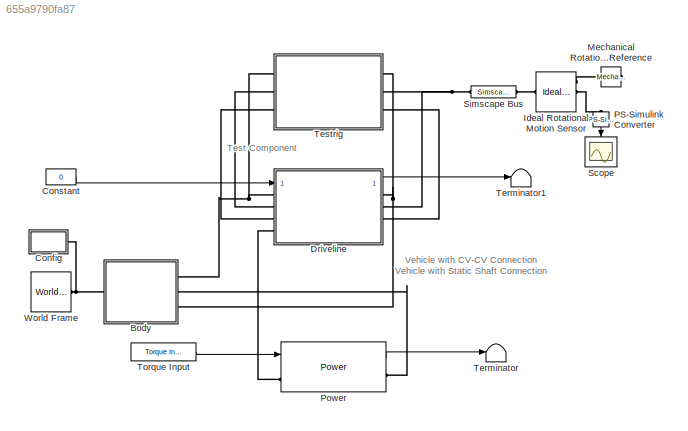
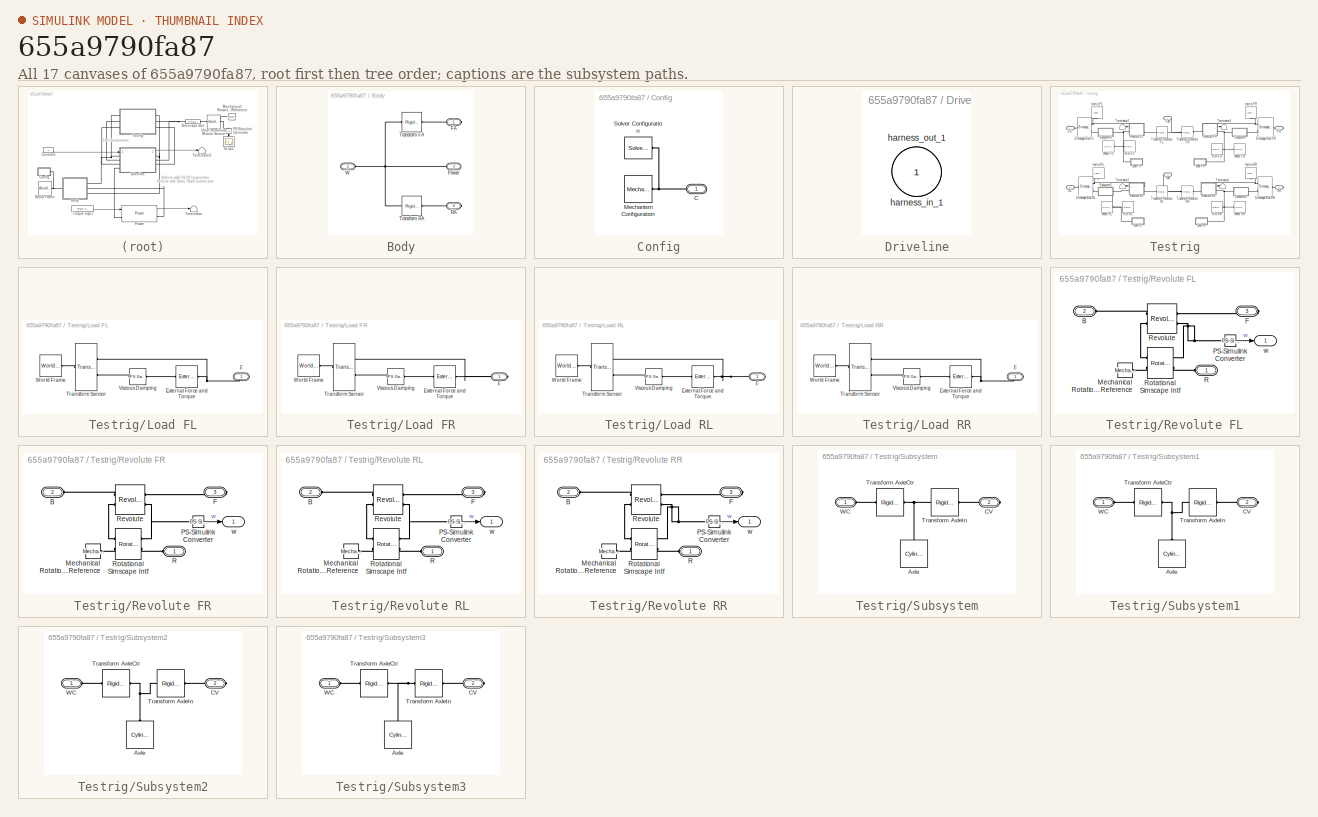
[diagram: thumbnail index - all 17 canvases of the model, root first then tree order]
MODEL slx_655a9790fa87
KIND model
CONFIG AbsTol = auto
CONFIG EnableMultiTasking = off
CONFIG FixedStep = auto
CONFIG MaxStep = auto
CONFIG MinStep = auto
CONFIG RelTol = 1e-3
CONFIG SampleTimeConstraint = Unconstrained
CONFIG SolverName = VariableStepAuto
CONFIG StartTime = 0.0
CONFIG StopTime = 10.0
BLOCK [SubSystem] Body
  Ports = [0, 0, 0, 0, 0, 1, 3]
  RequestExecContextInheritance = off
BLOCK [PMIOPort] Body/ Power
  Port = 3
  Side = Right
BLOCK [PMIOPort] Body/FA
  Side = Right
BLOCK [PMIOPort] Body/RA
  Port = 4
  Side = Right
BLOCK [Reference] Body/Transform FA   REF=sm_lib/Frames and
Transforms/Rigid
Transform
  Ports = [0, 0, 0, 0, 0, 1, 1]
  SourceBlock = sm_lib/Frames and\nTransforms/Rigid\nTransform
  SourceProductBaseCode = MS
  SourceType = Rigid\nTransform
BLOCK [Reference] Body/Transform RA  REF=sm_lib/Frames and
Transforms/Rigid
Transform
  Ports = [0, 0, 0, 0, 0, 1, 1]
  SourceBlock = sm_lib/Frames and\nTransforms/Rigid\nTransform
  SourceProductBaseCode = MS
  SourceType = Rigid\nTransform
BLOCK [PMIOPort] Body/W
  Port = 2
  Side = Left
BLOCK [SubSystem] Config
  Ports = [0, 0, 0, 0, 0, 0, 1]
  RequestExecContextInheritance = off
BLOCK [PMIOPort] Config/C
  Side = Right
BLOCK [Reference] Config/Mechanism Configuration  REF=sm_lib/Utilities/Mechanism
Configuration
  Ports = [0, 0, 0, 0, 0, 0, 1]
  SourceBlock = sm_lib/Utilities/Mechanism\nConfiguration
  SourceProductBaseCode = MS
  SourceType = Mechanism\nConfiguration
BLOCK [Reference] Config/Solver Configuration  REF=nesl_utility/Solver
Configuration
  Ports = [0, 0, 0, 0, 0, 0, 1]
  SourceBlock = nesl_utility/Solver\nConfiguration
  SourceProductBaseCode = SS,PW,VE
  SourceType = Solver\nConfiguration
BLOCK [Constant] Constant
  Value = 0
BLOCK [SubSystem] Driveline
  Ports = [1, 1, 0, 0, 0, 4, 4]
  RequestExecContextInheritance = off
  Tag = __SL_testing_harness_stub_
BLOCK [Inport] Driveline/harness_in_1
BLOCK [Outport] Driveline/harness_out_1
  VectorParamsAs1DForOutWhenUnconnected = off
BLOCK [Reference] Ideal Rotational Motion Sensor  REF=fl_lib/Mechanical/Mechanical Sensors/Ideal Rotational
Motion Sensor
  Ports = [0, 0, 0, 0, 0, 1, 3]
  SourceBlock = fl_lib/Mechanical/Mechanical Sensors/Ideal Rotational\nMotion Sensor
  SourceProductBaseCode = PW,SS,VE
  SourceType = Ideal Rotational\nMotion Sensor
BLOCK [Reference] Mechanical Rotational Reference  REF=fl_lib/Mechanical/Rotational Elements/Mechanical
Rotational Reference
  NameLocation = top
  Ports = [0, 0, 0, 0, 0, 1]
  SourceBlock = fl_lib/Mechanical/Rotational Elements/Mechanical\nRotational Reference
  SourceProductBaseCode = PW,SS,VE
  SourceType = Mechanical\nRotational Reference
BLOCK [Reference] PS-Simulink Converter  REF=nesl_utility/PS-Simulink
Converter
  NameLocation = left
  Ports = [0, 1, 0, 0, 0, 1]
  SourceBlock = nesl_utility/PS-Simulink\nConverter
  SourceProductBaseCode = SS,PW,VE
  SourceType = PS-Simulink\nConverter
BLOCK [Reference] Power  REF=Power_Systems/Power
  AttributesFormatString = %<ActiveVariant>
  Ports = [2, 1, 0, 0, 0, 1, 1]
  SourceBlock = Power_Systems/Power
  SourceType = Variants for Power
BLOCK [Scope] Scope
  Floating = off
  NameLocation = left
  NumInputPorts = 1
  Ports = [1]
  ScopeSpecificationString = Simulink.scopes.TimeScopeBlockCfg('CurrentConfiguration', extmgr.ConfigurationSet(extmgr.Configuration('Core','General UI',true),extmgr.Configuration('Core','Source UI',true),extmgr.Configuration('Sources','WiredSimulink',true),extmgr.Configuration('Visuals','Time Domain',true,'SerializedDisplays',{struct('MinYLimReal','-10.00000','MaxYLimReal','90.00000','YLabelReal','','MinYLimMag','0.00000','Ma...<+1355ch>
BLOCK [SimscapeBus] Simscape Bus
  HierarchyStrings = Axle1D
  Ports = [0, 0, 0, 0, 0, 1, 1]
BLOCK [Terminator] Terminator
BLOCK [Terminator] Terminator1
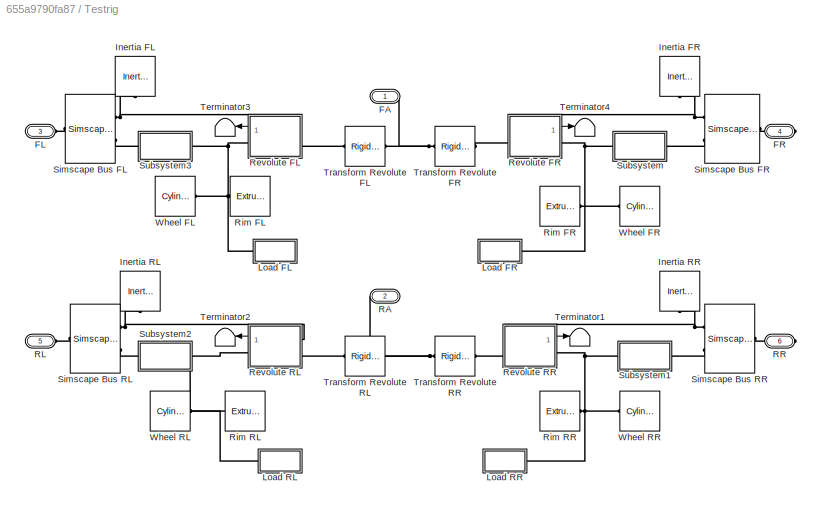
BLOCK [SubSystem] Testrig
  Ports = [0, 0, 0, 0, 0, 3, 3]
  RequestExecContextInheritance = off
BLOCK [PMIOPort] Testrig/FA
  Side = Left
BLOCK [PMIOPort] Testrig/FL
  Port = 3
  Side = Left
BLOCK [PMIOPort] Testrig/FR
  Port = 4
  Side = Right
BLOCK [Reference] Testrig/Inertia FL  REF=fl_lib/Mechanical/Rotational Elements/Inertia
  NameLocation = right
  Ports = [0, 0, 0, 0, 0, 1]
  SourceBlock = fl_lib/Mechanical/Rotational Elements/Inertia
  SourceProductBaseCode = PW,SS,VE
  SourceType = Inertia
BLOCK [Reference] Testrig/Inertia FR  REF=fl_lib/Mechanical/Rotational Elements/Inertia
  NameLocation = left
  Ports = [0, 0, 0, 0, 0, 1]
  SourceBlock = fl_lib/Mechanical/Rotational Elements/Inertia
  SourceProductBaseCode = PW,SS,VE
  SourceType = Inertia
BLOCK [Reference] Testrig/Inertia RL  REF=fl_lib/Mechanical/Rotational Elements/Inertia
  NameLocation = right
  Ports = [0, 0, 0, 0, 0, 1]
  SourceBlock = fl_lib/Mechanical/Rotational Elements/Inertia
  SourceProductBaseCode = PW,SS,VE
  SourceType = Inertia
BLOCK [Reference] Testrig/Inertia RR  REF=fl_lib/Mechanical/Rotational Elements/Inertia
  NameLocation = left
  Ports = [0, 0, 0, 0, 0, 1]
  SourceBlock = fl_lib/Mechanical/Rotational Elements/Inertia
  SourceProductBaseCode = PW,SS,VE
  SourceType = Inertia
BLOCK [SubSystem] Testrig/Load FL
  Ports = [0, 0, 0, 0, 0, 0, 1]
  RequestExecContextInheritance = off
BLOCK [Reference] Testrig/Load FL/External Force and Torque  REF=sm_lib/Forces and
Torques/External Force
and Torque
  Ports = [0, 0, 0, 0, 0, 1, 1]
  SourceBlock = sm_lib/Forces and\nTorques/External Force\nand Torque
  SourceProductBaseCode = MS
  SourceType = External Force\nand Torque
BLOCK [PMIOPort] Testrig/Load FL/F
  Side = Right
BLOCK [Reference] Testrig/Load FL/Transform Sensor  REF=sm_lib/Frames and
Transforms/Transform
Sensor
  Ports = [0, 0, 0, 0, 0, 1, 2]
  SourceBlock = sm_lib/Frames and\nTransforms/Transform\nSensor
  SourceProductBaseCode = MS
  SourceType = Transform\nSensor
BLOCK [Reference] Testrig/Load FL/Viscous Damping  REF=fl_ps_legacy_lib/Legacy Physical
Signals/Functions/PS Gain
  Ports = [0, 0, 0, 0, 0, 1, 1]
  SourceBlock = fl_ps_legacy_lib/Legacy Physical\nSignals/Functions/PS Gain
  SourceProductBaseCode = PW,SS,VE
  SourceType = PS Gain
BLOCK [Reference] Testrig/Load FL/World Frame  REF=sm_lib/Frames and
Transforms/World Frame
  Ports = [0, 0, 0, 0, 0, 0, 1]
  SourceBlock = sm_lib/Frames and\nTransforms/World Frame
  SourceProductBaseCode = MS
  SourceType = World Frame
BLOCK [SubSystem] Testrig/Load FR
  Ports = [0, 0, 0, 0, 0, 0, 1]
  RequestExecContextInheritance = off
BLOCK [Reference] Testrig/Load FR/External Force and Torque  REF=sm_lib/Forces and
Torques/External Force
and Torque
  Ports = [0, 0, 0, 0, 0, 1, 1]
  SourceBlock = sm_lib/Forces and\nTorques/External Force\nand Torque
  SourceProductBaseCode = MS
  SourceType = External Force\nand Torque
BLOCK [PMIOPort] Testrig/Load FR/F
  Side = Right
BLOCK [Reference] Testrig/Load FR/Transform Sensor  REF=sm_lib/Frames and
Transforms/Transform
Sensor
  Ports = [0, 0, 0, 0, 0, 1, 2]
  SourceBlock = sm_lib/Frames and\nTransforms/Transform\nSensor
  SourceProductBaseCode = MS
  SourceType = Transform\nSensor
BLOCK [Reference] Testrig/Load FR/Viscous Damping  REF=fl_ps_legacy_lib/Legacy Physical
Signals/Functions/PS Gain
  Ports = [0, 0, 0, 0, 0, 1, 1]
  SourceBlock = fl_ps_legacy_lib/Legacy Physical\nSignals/Functions/PS Gain
  SourceProductBaseCode = PW,SS,VE
  SourceType = PS Gain
BLOCK [Reference] Testrig/Load FR/World Frame  REF=sm_lib/Frames and
Transforms/World Frame
  Ports = [0, 0, 0, 0, 0, 0, 1]
  SourceBlock = sm_lib/Frames and\nTransforms/World Frame
  SourceProductBaseCode = MS
  SourceType = World Frame
BLOCK [SubSystem] Testrig/Load RL
  Ports = [0, 0, 0, 0, 0, 0, 1]
  RequestExecContextInheritance = off
BLOCK [Reference] Testrig/Load RL/External Force and Torque  REF=sm_lib/Forces and
Torques/External Force
and Torque
  Ports = [0, 0, 0, 0, 0, 1, 1]
  SourceBlock = sm_lib/Forces and\nTorques/External Force\nand Torque
  SourceProductBaseCode = MS
  SourceType = External Force\nand Torque
BLOCK [PMIOPort] Testrig/Load RL/F
  Side = Right
BLOCK [Reference] Testrig/Load RL/Transform Sensor  REF=sm_lib/Frames and
Transforms/Transform
Sensor
  Ports = [0, 0, 0, 0, 0, 1, 2]
  SourceBlock = sm_lib/Frames and\nTransforms/Transform\nSensor
  SourceProductBaseCode = MS
  SourceType = Transform\nSensor
BLOCK [Reference] Testrig/Load RL/Viscous Damping  REF=fl_ps_legacy_lib/Legacy Physical
Signals/Functions/PS Gain
  Ports = [0, 0, 0, 0, 0, 1, 1]
  SourceBlock = fl_ps_legacy_lib/Legacy Physical\nSignals/Functions/PS Gain
  SourceProductBaseCode = PW,SS,VE
  SourceType = PS Gain
BLOCK [Reference] Testrig/Load RL/World Frame  REF=sm_lib/Frames and
Transforms/World Frame
  Ports = [0, 0, 0, 0, 0, 0, 1]
  SourceBlock = sm_lib/Frames and\nTransforms/World Frame
  SourceProductBaseCode = MS
  SourceType = World Frame
BLOCK [SubSystem] Testrig/Load RR
  Ports = [0, 0, 0, 0, 0, 0, 1]
  RequestExecContextInheritance = off
BLOCK [Reference] Testrig/Load RR/External Force and Torque  REF=sm_lib/Forces and
Torques/External Force
and Torque
  Ports = [0, 0, 0, 0, 0, 1, 1]
  SourceBlock = sm_lib/Forces and\nTorques/External Force\nand Torque
  SourceProductBaseCode = MS
  SourceType = External Force\nand Torque
BLOCK [PMIOPort] Testrig/Load RR/F
  Side = Right
BLOCK [Reference] Testrig/Load RR/Transform Sensor  REF=sm_lib/Frames and
Transforms/Transform
Sensor
  Ports = [0, 0, 0, 0, 0, 1, 2]
  SourceBlock = sm_lib/Frames and\nTransforms/Transform\nSensor
  SourceProductBaseCode = MS
  SourceType = Transform\nSensor
BLOCK [Reference] Testrig/Load RR/Viscous Damping  REF=fl_ps_legacy_lib/Legacy Physical
Signals/Functions/PS Gain
  Ports = [0, 0, 0, 0, 0, 1, 1]
  SourceBlock = fl_ps_legacy_lib/Legacy Physical\nSignals/Functions/PS Gain
  SourceProductBaseCode = PW,SS,VE
  SourceType = PS Gain
BLOCK [Reference] Testrig/Load RR/World Frame  REF=sm_lib/Frames and
Transforms/World Frame
  Ports = [0, 0, 0, 0, 0, 0, 1]
  SourceBlock = sm_lib/Frames and\nTransforms/World Frame
  SourceProductBaseCode = MS
  SourceType = World Frame
BLOCK [PMIOPort] Testrig/RA
  Port = 2
  Side = Right
BLOCK [PMIOPort] Testrig/RL
  Port = 5
  Side = Left
BLOCK [PMIOPort] Testrig/RR
  Port = 6
  Side = Right
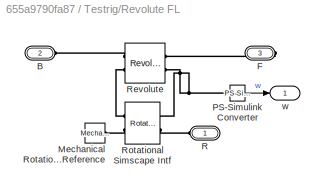
BLOCK [SubSystem] Testrig/Revolute FL
  Ports = [0, 1, 0, 0, 0, 2, 1]
  RequestExecContextInheritance = off
BLOCK [PMIOPort] Testrig/Revolute FL/B
  Port = 2
  Side = Left
BLOCK [PMIOPort] Testrig/Revolute FL/F
  Port = 3
  Side = Right
BLOCK [Reference] Testrig/Revolute FL/Mechanical Rotational Reference  REF=fl_lib/Mechanical/Rotational Elements/Mechanical
Rotational Reference
  Ports = [0, 0, 0, 0, 0, 1]
  SourceBlock = fl_lib/Mechanical/Rotational Elements/Mechanical\nRotational Reference
  SourceProductBaseCode = PW,SS,VE
  SourceType = Mechanical\nRotational Reference
BLOCK [Reference] Testrig/Revolute FL/PS-Simulink Converter  REF=nesl_utility/PS-Simulink
Converter
  Ports = [0, 1, 0, 0, 0, 1]
  SourceBlock = nesl_utility/PS-Simulink\nConverter
  SourceProductBaseCode = SS,PW,VE
  SourceType = PS-Simulink\nConverter
BLOCK [PMIOPort] Testrig/Revolute FL/R
  Side = Left
BLOCK [Reference] Testrig/Revolute FL/Revolute  REF=sm_lib/Joints/Revolute Joint
  Ports = [0, 0, 0, 0, 0, 2, 2]
  SourceBlock = sm_lib/Joints/Revolute Joint
  SourceProductBaseCode = MS
  SourceType = Revolute Joint
BLOCK [Reference] Testrig/Revolute FL/Rotational Simscape Intf  REF=sm_car_lib/Utilities/Rotational  (lib defined in slx_05426f0848b6, slx_5dc2867fb1c9)
Simscape Intf
  Ports = [0, 0, 0, 0, 0, 2, 2]
  SourceBlock = sm_car_lib/Utilities/Rotational\nSimscape Intf
  SourceType = SubSystem
BLOCK [Outport] Testrig/Revolute FL/w
  VectorParamsAs1DForOutWhenUnconnected = off
BLOCK [SubSystem] Testrig/Revolute FR
  Ports = [0, 1, 0, 0, 0, 2, 1]
  RequestExecContextInheritance = off
BLOCK [PMIOPort] Testrig/Revolute FR/B
  Port = 2
  Side = Left
BLOCK [PMIOPort] Testrig/Revolute FR/F
  Port = 3
  Side = Right
BLOCK [Reference] Testrig/Revolute FR/Mechanical Rotational Reference  REF=fl_lib/Mechanical/Rotational Elements/Mechanical
Rotational Reference
  Ports = [0, 0, 0, 0, 0, 1]
  SourceBlock = fl_lib/Mechanical/Rotational Elements/Mechanical\nRotational Reference
  SourceProductBaseCode = PW,SS,VE
  SourceType = Mechanical\nRotational Reference
BLOCK [Reference] Testrig/Revolute FR/PS-Simulink Converter  REF=nesl_utility/PS-Simulink
Converter
  Ports = [0, 1, 0, 0, 0, 1]
  SourceBlock = nesl_utility/PS-Simulink\nConverter
  SourceProductBaseCode = SS,PW,VE
  SourceType = PS-Simulink\nConverter
BLOCK [PMIOPort] Testrig/Revolute FR/R
  Side = Left
BLOCK [Reference] Testrig/Revolute FR/Revolute  REF=sm_lib/Joints/Revolute Joint
  Ports = [0, 0, 0, 0, 0, 2, 2]
  SourceBlock = sm_lib/Joints/Revolute Joint
  SourceProductBaseCode = MS
  SourceType = Revolute Joint
BLOCK [Reference] Testrig/Revolute FR/Rotational Simscape Intf  REF=sm_car_lib/Utilities/Rotational  (lib defined in slx_05426f0848b6, slx_5dc2867fb1c9)
Simscape Intf
  Ports = [0, 0, 0, 0, 0, 2, 2]
  SourceBlock = sm_car_lib/Utilities/Rotational\nSimscape Intf
  SourceType = SubSystem
BLOCK [Outport] Testrig/Revolute FR/w
  VectorParamsAs1DForOutWhenUnconnected = off
BLOCK [SubSystem] Testrig/Revolute RL
  Ports = [0, 1, 0, 0, 0, 2, 1]
  RequestExecContextInheritance = off
BLOCK [PMIOPort] Testrig/Revolute RL/B
  Port = 2
  Side = Left
BLOCK [PMIOPort] Testrig/Revolute RL/F
  Port = 3
  Side = Right
BLOCK [Reference] Testrig/Revolute RL/Mechanical Rotational Reference  REF=fl_lib/Mechanical/Rotational Elements/Mechanical
Rotational Reference
  Ports = [0, 0, 0, 0, 0, 1]
  SourceBlock = fl_lib/Mechanical/Rotational Elements/Mechanical\nRotational Reference
  SourceProductBaseCode = PW,SS,VE
  SourceType = Mechanical\nRotational Reference
BLOCK [Reference] Testrig/Revolute RL/PS-Simulink Converter  REF=nesl_utility/PS-Simulink
Converter
  Ports = [0, 1, 0, 0, 0, 1]
  SourceBlock = nesl_utility/PS-Simulink\nConverter
  SourceProductBaseCode = SS,PW,VE
  SourceType = PS-Simulink\nConverter
BLOCK [PMIOPort] Testrig/Revolute RL/R
  Side = Left
BLOCK [Reference] Testrig/Revolute RL/Revolute  REF=sm_lib/Joints/Revolute Joint
  Ports = [0, 0, 0, 0, 0, 2, 2]
  SourceBlock = sm_lib/Joints/Revolute Joint
  SourceProductBaseCode = MS
  SourceType = Revolute Joint
BLOCK [Reference] Testrig/Revolute RL/Rotational Simscape Intf  REF=sm_car_lib/Utilities/Rotational  (lib defined in slx_05426f0848b6, slx_5dc2867fb1c9)
Simscape Intf
  Ports = [0, 0, 0, 0, 0, 2, 2]
  SourceBlock = sm_car_lib/Utilities/Rotational\nSimscape Intf
  SourceType = SubSystem
BLOCK [Outport] Testrig/Revolute RL/w
  VectorParamsAs1DForOutWhenUnconnected = off
BLOCK [SubSystem] Testrig/Revolute RR
  Ports = [0, 1, 0, 0, 0, 2, 1]
  RequestExecContextInheritance = off
BLOCK [PMIOPort] Testrig/Revolute RR/B
  Port = 2
  Side = Left
BLOCK [PMIOPort] Testrig/Revolute RR/F
  Port = 3
  Side = Right
BLOCK [Reference] Testrig/Revolute RR/Mechanical Rotational Reference  REF=fl_lib/Mechanical/Rotational Elements/Mechanical
Rotational Reference
  Ports = [0, 0, 0, 0, 0, 1]
  SourceBlock = fl_lib/Mechanical/Rotational Elements/Mechanical\nRotational Reference
  SourceProductBaseCode = PW,SS,VE
  SourceType = Mechanical\nRotational Reference
BLOCK [Reference] Testrig/Revolute RR/PS-Simulink Converter  REF=nesl_utility/PS-Simulink
Converter
  Ports = [0, 1, 0, 0, 0, 1]
  SourceBlock = nesl_utility/PS-Simulink\nConverter
  SourceProductBaseCode = SS,PW,VE
  SourceType = PS-Simulink\nConverter
BLOCK [PMIOPort] Testrig/Revolute RR/R
  Side = Left
BLOCK [Reference] Testrig/Revolute RR/Revolute  REF=sm_lib/Joints/Revolute Joint
  Ports = [0, 0, 0, 0, 0, 2, 2]
  SourceBlock = sm_lib/Joints/Revolute Joint
  SourceProductBaseCode = MS
  SourceType = Revolute Joint
BLOCK [Reference] Testrig/Revolute RR/Rotational Simscape Intf  REF=sm_car_lib/Utilities/Rotational  (lib defined in slx_05426f0848b6, slx_5dc2867fb1c9)
Simscape Intf
  Ports = [0, 0, 0, 0, 0, 2, 2]
  SourceBlock = sm_car_lib/Utilities/Rotational\nSimscape Intf
  SourceType = SubSystem
BLOCK [Outport] Testrig/Revolute RR/w
  VectorParamsAs1DForOutWhenUnconnected = off
BLOCK [Reference] Testrig/Rim FL  REF=sm_lib/Body Elements/Extruded Solid
  Ports = [0, 0, 0, 0, 0, 0, 1]
  SourceBlock = sm_lib/Body Elements/Extruded Solid
  SourceProductBaseCode = MS
  SourceType = Extruded Solid
BLOCK [Reference] Testrig/Rim FR  REF=sm_lib/Body Elements/Extruded Solid
  Ports = [0, 0, 0, 0, 0, 0, 1]
  SourceBlock = sm_lib/Body Elements/Extruded Solid
  SourceProductBaseCode = MS
  SourceType = Extruded Solid
BLOCK [Reference] Testrig/Rim RL  REF=sm_lib/Body Elements/Extruded Solid
  Ports = [0, 0, 0, 0, 0, 0, 1]
  SourceBlock = sm_lib/Body Elements/Extruded Solid
  SourceProductBaseCode = MS
  SourceType = Extruded Solid
BLOCK [Reference] Testrig/Rim RR  REF=sm_lib/Body Elements/Extruded Solid
  Ports = [0, 0, 0, 0, 0, 0, 1]
  SourceBlock = sm_lib/Body Elements/Extruded Solid
  SourceProductBaseCode = MS
  SourceType = Extruded Solid
BLOCK [SimscapeBus] Testrig/Simscape Bus FL
  HierarchyStrings = Axle1D;AxleIn
  Ports = [0, 0, 0, 0, 0, 2, 1]
BLOCK [SimscapeBus] Testrig/Simscape Bus FR
  HierarchyStrings = Axle1D;AxleIn
  Ports = [0, 0, 0, 0, 0, 2, 1]
BLOCK [SimscapeBus] Testrig/Simscape Bus RL
  HierarchyStrings = Axle1D;AxleIn
  Ports = [0, 0, 0, 0, 0, 2, 1]
BLOCK [SimscapeBus] Testrig/Simscape Bus RR
  HierarchyStrings = Axle1D;AxleIn
  Ports = [0, 0, 0, 0, 0, 2, 1]
BLOCK [SubSystem] Testrig/Subsystem
  Ports = [0, 0, 0, 0, 0, 1, 1]
  RequestExecContextInheritance = off
BLOCK [Reference] Testrig/Subsystem/Axle  REF=sm_lib/Body Elements/Cylindrical Solid
  NameLocation = left
  Ports = [0, 0, 0, 0, 0, 0, 1]
  SourceBlock = sm_lib/Body Elements/Cylindrical Solid
  SourceProductBaseCode = MS
  SourceType = Cylindrical Solid
BLOCK [PMIOPort] Testrig/Subsystem/CV
  Port = 2
  Side = Right
BLOCK [Reference] Testrig/Subsystem/Transform AxleCtr  REF=sm_lib/Frames and
Transforms/Rigid
Transform
  Ports = [0, 0, 0, 0, 0, 1, 1]
  SourceBlock = sm_lib/Frames and\nTransforms/Rigid\nTransform
  SourceProductBaseCode = MS
  SourceType = Rigid\nTransform
BLOCK [Reference] Testrig/Subsystem/Transform AxleIn  REF=sm_lib/Frames and
Transforms/Rigid
Transform
  Ports = [0, 0, 0, 0, 0, 1, 1]
  SourceBlock = sm_lib/Frames and\nTransforms/Rigid\nTransform
  SourceProductBaseCode = MS
  SourceType = Rigid\nTransform
BLOCK [PMIOPort] Testrig/Subsystem/WC
  Side = Left
BLOCK [SubSystem] Testrig/Subsystem1
  Ports = [0, 0, 0, 0, 0, 1, 1]
  RequestExecContextInheritance = off
BLOCK [Reference] Testrig/Subsystem1/Axle  REF=sm_lib/Body Elements/Cylindrical Solid
  NameLocation = left
  Ports = [0, 0, 0, 0, 0, 0, 1]
  SourceBlock = sm_lib/Body Elements/Cylindrical Solid
  SourceProductBaseCode = MS
  SourceType = Cylindrical Solid
BLOCK [PMIOPort] Testrig/Subsystem1/CV
  Port = 2
  Side = Right
BLOCK [Reference] Testrig/Subsystem1/Transform AxleCtr  REF=sm_lib/Frames and
Transforms/Rigid
Transform
  Ports = [0, 0, 0, 0, 0, 1, 1]
  SourceBlock = sm_lib/Frames and\nTransforms/Rigid\nTransform
  SourceProductBaseCode = MS
  SourceType = Rigid\nTransform
BLOCK [Reference] Testrig/Subsystem1/Transform AxleIn  REF=sm_lib/Frames and
Transforms/Rigid
Transform
  Ports = [0, 0, 0, 0, 0, 1, 1]
  SourceBlock = sm_lib/Frames and\nTransforms/Rigid\nTransform
  SourceProductBaseCode = MS
  SourceType = Rigid\nTransform
BLOCK [PMIOPort] Testrig/Subsystem1/WC
  Side = Left
BLOCK [SubSystem] Testrig/Subsystem2
  Ports = [0, 0, 0, 0, 0, 1, 1]
  RequestExecContextInheritance = off
BLOCK [Reference] Testrig/Subsystem2/Axle  REF=sm_lib/Body Elements/Cylindrical Solid
  NameLocation = left
  Ports = [0, 0, 0, 0, 0, 0, 1]
  SourceBlock = sm_lib/Body Elements/Cylindrical Solid
  SourceProductBaseCode = MS
  SourceType = Cylindrical Solid
BLOCK [PMIOPort] Testrig/Subsystem2/CV
  Port = 2
  Side = Right
BLOCK [Reference] Testrig/Subsystem2/Transform AxleCtr  REF=sm_lib/Frames and
Transforms/Rigid
Transform
  Ports = [0, 0, 0, 0, 0, 1, 1]
  SourceBlock = sm_lib/Frames and\nTransforms/Rigid\nTransform
  SourceProductBaseCode = MS
  SourceType = Rigid\nTransform
BLOCK [Reference] Testrig/Subsystem2/Transform AxleIn  REF=sm_lib/Frames and
Transforms/Rigid
Transform
  Ports = [0, 0, 0, 0, 0, 1, 1]
  SourceBlock = sm_lib/Frames and\nTransforms/Rigid\nTransform
  SourceProductBaseCode = MS
  SourceType = Rigid\nTransform
BLOCK [PMIOPort] Testrig/Subsystem2/WC
  Side = Left
BLOCK [SubSystem] Testrig/Subsystem3
  Ports = [0, 0, 0, 0, 0, 1, 1]
  RequestExecContextInheritance = off
BLOCK [Reference] Testrig/Subsystem3/Axle  REF=sm_lib/Body Elements/Cylindrical Solid
  NameLocation = left
  Ports = [0, 0, 0, 0, 0, 0, 1]
  SourceBlock = sm_lib/Body Elements/Cylindrical Solid
  SourceProductBaseCode = MS
  SourceType = Cylindrical Solid
BLOCK [PMIOPort] Testrig/Subsystem3/CV
  Port = 2
  Side = Right
BLOCK [Reference] Testrig/Subsystem3/Transform AxleCtr  REF=sm_lib/Frames and
Transforms/Rigid
Transform
  Ports = [0, 0, 0, 0, 0, 1, 1]
  SourceBlock = sm_lib/Frames and\nTransforms/Rigid\nTransform
  SourceProductBaseCode = MS
  SourceType = Rigid\nTransform
BLOCK [Reference] Testrig/Subsystem3/Transform AxleIn  REF=sm_lib/Frames and
Transforms/Rigid
Transform
  Ports = [0, 0, 0, 0, 0, 1, 1]
  SourceBlock = sm_lib/Frames and\nTransforms/Rigid\nTransform
  SourceProductBaseCode = MS
  SourceType = Rigid\nTransform
BLOCK [PMIOPort] Testrig/Subsystem3/WC
  Side = Left
BLOCK [Terminator] Testrig/Terminator1
BLOCK [Terminator] Testrig/Terminator2
BLOCK [Terminator] Testrig/Terminator3
BLOCK [Terminator] Testrig/Terminator4
BLOCK [Reference] Testrig/Transform Revolute FL  REF=sm_lib/Frames and
Transforms/Rigid
Transform
  Ports = [0, 0, 0, 0, 0, 1, 1]
  SourceBlock = sm_lib/Frames and\nTransforms/Rigid\nTransform
  SourceProductBaseCode = MS
  SourceType = Rigid\nTransform
BLOCK [Reference] Testrig/Transform Revolute FR  REF=sm_lib/Frames and
Transforms/Rigid
Transform
  Ports = [0, 0, 0, 0, 0, 1, 1]
  SourceBlock = sm_lib/Frames and\nTransforms/Rigid\nTransform
  SourceProductBaseCode = MS
  SourceType = Rigid\nTransform
BLOCK [Reference] Testrig/Transform Revolute RL  REF=sm_lib/Frames and
Transforms/Rigid
Transform
  Ports = [0, 0, 0, 0, 0, 1, 1]
  SourceBlock = sm_lib/Frames and\nTransforms/Rigid\nTransform
  SourceProductBaseCode = MS
  SourceType = Rigid\nTransform
BLOCK [Reference] Testrig/Transform Revolute RR  REF=sm_lib/Frames and
Transforms/Rigid
Transform
  Ports = [0, 0, 0, 0, 0, 1, 1]
  SourceBlock = sm_lib/Frames and\nTransforms/Rigid\nTransform
  SourceProductBaseCode = MS
  SourceType = Rigid\nTransform
BLOCK [Reference] Testrig/Wheel FL  REF=sm_lib/Body Elements/Cylindrical Solid
  Ports = [0, 0, 0, 0, 0, 0, 1]
  SourceBlock = sm_lib/Body Elements/Cylindrical Solid
  SourceProductBaseCode = MS
  SourceType = Cylindrical Solid
BLOCK [Reference] Testrig/Wheel FR  REF=sm_lib/Body Elements/Cylindrical Solid
  Ports = [0, 0, 0, 0, 0, 0, 1]
  SourceBlock = sm_lib/Body Elements/Cylindrical Solid
  SourceProductBaseCode = MS
  SourceType = Cylindrical Solid
BLOCK [Reference] Testrig/Wheel RL  REF=sm_lib/Body Elements/Cylindrical Solid
  Ports = [0, 0, 0, 0, 0, 0, 1]
  SourceBlock = sm_lib/Body Elements/Cylindrical Solid
  SourceProductBaseCode = MS
  SourceType = Cylindrical Solid
BLOCK [Reference] Testrig/Wheel RR  REF=sm_lib/Body Elements/Cylindrical Solid
  Ports = [0, 0, 0, 0, 0, 0, 1]
  SourceBlock = sm_lib/Body Elements/Cylindrical Solid
  SourceProductBaseCode = MS
  SourceType = Cylindrical Solid
BLOCK [Reference] Torque Input  REF=sm_car_lib/Inputs/Control Bus/Torque Input  (lib defined in slx_05426f0848b6, slx_5dc2867fb1c9)
  Ports = [0, 1]
  SourceBlock = sm_car_lib/Inputs/Control Bus/Torque Input
BLOCK [Reference] World Frame  REF=sm_lib/Frames and
Transforms/World Frame
  Ports = [0, 0, 0, 0, 0, 0, 1]
  SourceBlock = sm_lib/Frames and\nTransforms/World Frame
  SourceProductBaseCode = MS
  SourceType = World Frame
ANNOTATION (root): Vehicle with CV-CV Connection Vehicle with Static Shaft Connection
ANNOTATION (root): Test Component
LINE Constant:1 -> Driveline:1
LINE Driveline:1 -> Terminator1:1
LINE PS-Simulink Converter:1 -> Scope:1
LINE Power:1 -> Terminator:1
LINE Testrig/Revolute FL/PS-Simulink Converter:1 -> Testrig/Revolute FL/w:1
LINE Testrig/Revolute FL:1 -> Testrig/Terminator3:1
LINE Testrig/Revolute FR/PS-Simulink Converter:1 -> Testrig/Revolute FR/w:1
LINE Testrig/Revolute FR:1 -> Testrig/Terminator4:1
LINE Testrig/Revolute RL/PS-Simulink Converter:1 -> Testrig/Revolute RL/w:1
LINE Testrig/Revolute RL:1 -> Testrig/Terminator2:1
LINE Testrig/Revolute RR/PS-Simulink Converter:1 -> Testrig/Revolute RR/w:1
LINE Testrig/Revolute RR:1 -> Testrig/Terminator1:1
LINE Torque Input:1 -> Power:1
PNET net1: Body/ Power:RConn1 -- Body/Transform FA :LConn1 -- Body/Transform RA:LConn1 -- Body/W:RConn1
PLINE Body/FA:RConn1 -- Body/Transform FA :RConn1
PLINE Body/RA:RConn1 -- Body/Transform RA:RConn1
PNET net2: Body:LConn1 -- Config:RConn1 -- World Frame:RConn1
PNET net3: Body:RConn1 -- Driveline:LConn1 -- Testrig:LConn1
PLINE Body:RConn2 -- Power:RConn1
PNET net4: Body:RConn3 -- Driveline:RConn1 -- Testrig:RConn1
PNET net5: Config/C:RConn1 -- Config/Mechanism Configuration:RConn1 -- Config/Solver Configuration:RConn1
PLINE Driveline:LConn2 -- Testrig:LConn2
PLINE Driveline:LConn3 -- Testrig:LConn3
PLINE Driveline:LConn4 -- Power:LConn1
PNET net6: Driveline:RConn2 -- Simscape Bus:RConn1 -- Testrig:RConn2
PLINE Driveline:RConn3 -- Testrig:RConn3
PLINE Ideal Rotational Motion Sensor:LConn1 -- Simscape Bus:LConn1
PLINE Ideal Rotational Motion Sensor:RConn1 -- Mechanical Rotational Reference:LConn1
PLINE Ideal Rotational Motion Sensor:RConn2 -- PS-Simulink Converter:LConn1
PNET net7: Testrig/FA:RConn1 -- Testrig/Transform Revolute FL:LConn1 -- Testrig/Transform Revolute FR:LConn1
PLINE Testrig/FL:RConn1 -- Testrig/Simscape Bus FL:RConn1
PLINE Testrig/FR:RConn1 -- Testrig/Simscape Bus FR:RConn1
PNET net8: Testrig/Inertia FL:LConn1 -- Testrig/Revolute FL:LConn1 -- Testrig/Simscape Bus FL:LConn1
PNET net9: Testrig/Inertia FR:LConn1 -- Testrig/Revolute FR:LConn1 -- Testrig/Simscape Bus FR:LConn1
PNET net10: Testrig/Inertia RL:LConn1 -- Testrig/Revolute RL:LConn1 -- Testrig/Simscape Bus RL:LConn1
PNET net11: Testrig/Inertia RR:LConn1 -- Testrig/Revolute RR:LConn1 -- Testrig/Simscape Bus RR:LConn1
PLINE Testrig/Load FL/External Force and Torque:LConn1 -- Testrig/Load FL/Viscous Damping:RConn1
PNET net12: Testrig/Load FL/External Force and Torque:RConn1 -- Testrig/Load FL/F:RConn1 -- Testrig/Load FL/Transform Sensor:RConn1
PLINE Testrig/Load FL/Transform Sensor:LConn1 -- Testrig/Load FL/World Frame:RConn1
PLINE Testrig/Load FL/Transform Sensor:RConn2 -- Testrig/Load FL/Viscous Damping:LConn1
PNET net13: Testrig/Load FL:RConn1 -- Testrig/Revolute FL:RConn1 -- Testrig/Rim FL:RConn1 -- Testrig/Subsystem3:LConn1 -- Testrig/Wheel FL:RConn1
PLINE Testrig/Load FR/External Force and Torque:LConn1 -- Testrig/Load FR/Viscous Damping:RConn1
PNET net14: Testrig/Load FR/External Force and Torque:RConn1 -- Testrig/Load FR/F:RConn1 -- Testrig/Load FR/Transform Sensor:RConn1
PLINE Testrig/Load FR/Transform Sensor:LConn1 -- Testrig/Load FR/World Frame:RConn1
PLINE Testrig/Load FR/Transform Sensor:RConn2 -- Testrig/Load FR/Viscous Damping:LConn1
PNET net15: Testrig/Load FR:RConn1 -- Testrig/Revolute FR:RConn1 -- Testrig/Rim FR:RConn1 -- Testrig/Subsystem:LConn1 -- Testrig/Wheel FR:RConn1
PLINE Testrig/Load RL/External Force and Torque:LConn1 -- Testrig/Load RL/Viscous Damping:RConn1
PNET net16: Testrig/Load RL/External Force and Torque:RConn1 -- Testrig/Load RL/F:RConn1 -- Testrig/Load RL/Transform Sensor:RConn1
PLINE Testrig/Load RL/Transform Sensor:LConn1 -- Testrig/Load RL/World Frame:RConn1
PLINE Testrig/Load RL/Transform Sensor:RConn2 -- Testrig/Load RL/Viscous Damping:LConn1
PNET net17: Testrig/Load RL:RConn1 -- Testrig/Revolute RL:RConn1 -- Testrig/Rim RL:RConn1 -- Testrig/Subsystem2:LConn1 -- Testrig/Wheel RL:RConn1
PLINE Testrig/Load RR/External Force and Torque:LConn1 -- Testrig/Load RR/Viscous Damping:RConn1
PNET net18: Testrig/Load RR/External Force and Torque:RConn1 -- Testrig/Load RR/F:RConn1 -- Testrig/Load RR/Transform Sensor:RConn1
PLINE Testrig/Load RR/Transform Sensor:LConn1 -- Testrig/Load RR/World Frame:RConn1
PLINE Testrig/Load RR/Transform Sensor:RConn2 -- Testrig/Load RR/Viscous Damping:LConn1
PNET net19: Testrig/Load RR:RConn1 -- Testrig/Revolute RR:RConn1 -- Testrig/Rim RR:RConn1 -- Testrig/Subsystem1:LConn1 -- Testrig/Wheel RR:RConn1
PNET net20: Testrig/RA:RConn1 -- Testrig/Transform Revolute RL:LConn1 -- Testrig/Transform Revolute RR:LConn1
PLINE Testrig/RL:RConn1 -- Testrig/Simscape Bus RL:RConn1
PLINE Testrig/RR:RConn1 -- Testrig/Simscape Bus RR:RConn1
PLINE Testrig/Revolute FL/B:RConn1 -- Testrig/Revolute FL/Revolute:LConn1
PLINE Testrig/Revolute FL/F:RConn1 -- Testrig/Revolute FL/Revolute:RConn1
PLINE Testrig/Revolute FL/Mechanical Rotational Reference:LConn1 -- Testrig/Revolute FL/Rotational Simscape Intf:LConn2
PNET net21: Testrig/Revolute FL/PS-Simulink Converter:LConn1 -- Testrig/Revolute FL/Revolute:RConn2 -- Testrig/Revolute FL/Rotational Simscape Intf:RConn1
PLINE Testrig/Revolute FL/R:RConn1 -- Testrig/Revolute FL/Rotational Simscape Intf:RConn2
PLINE Testrig/Revolute FL/Revolute:LConn2 -- Testrig/Revolute FL/Rotational Simscape Intf:LConn1
PLINE Testrig/Revolute FL:LConn2 -- Testrig/Transform Revolute FL:RConn1
PLINE Testrig/Revolute FR/B:RConn1 -- Testrig/Revolute FR/Revolute:LConn1
PLINE Testrig/Revolute FR/F:RConn1 -- Testrig/Revolute FR/Revolute:RConn1
PLINE Testrig/Revolute FR/Mechanical Rotational Reference:LConn1 -- Testrig/Revolute FR/Rotational Simscape Intf:LConn2
PNET net22: Testrig/Revolute FR/PS-Simulink Converter:LConn1 -- Testrig/Revolute FR/Revolute:RConn2 -- Testrig/Revolute FR/Rotational Simscape Intf:RConn1
PLINE Testrig/Revolute FR/R:RConn1 -- Testrig/Revolute FR/Rotational Simscape Intf:RConn2
PLINE Testrig/Revolute FR/Revolute:LConn2 -- Testrig/Revolute FR/Rotational Simscape Intf:LConn1
PLINE Testrig/Revolute FR:LConn2 -- Testrig/Transform Revolute FR:RConn1
PLINE Testrig/Revolute RL/B:RConn1 -- Testrig/Revolute RL/Revolute:LConn1
PLINE Testrig/Revolute RL/F:RConn1 -- Testrig/Revolute RL/Revolute:RConn1
PLINE Testrig/Revolute RL/Mechanical Rotational Reference:LConn1 -- Testrig/Revolute RL/Rotational Simscape Intf:LConn2
PNET net23: Testrig/Revolute RL/PS-Simulink Converter:LConn1 -- Testrig/Revolute RL/Revolute:RConn2 -- Testrig/Revolute RL/Rotational Simscape Intf:RConn1
PLINE Testrig/Revolute RL/R:RConn1 -- Testrig/Revolute RL/Rotational Simscape Intf:RConn2
PLINE Testrig/Revolute RL/Revolute:LConn2 -- Testrig/Revolute RL/Rotational Simscape Intf:LConn1
PLINE Testrig/Revolute RL:LConn2 -- Testrig/Transform Revolute RL:RConn1
PLINE Testrig/Revolute RR/B:RConn1 -- Testrig/Revolute RR/Revolute:LConn1
PLINE Testrig/Revolute RR/F:RConn1 -- Testrig/Revolute RR/Revolute:RConn1
PLINE Testrig/Revolute RR/Mechanical Rotational Reference:LConn1 -- Testrig/Revolute RR/Rotational Simscape Intf:LConn2
PNET net24: Testrig/Revolute RR/PS-Simulink Converter:LConn1 -- Testrig/Revolute RR/Revolute:RConn2 -- Testrig/Revolute RR/Rotational Simscape Intf:RConn1
PLINE Testrig/Revolute RR/R:RConn1 -- Testrig/Revolute RR/Rotational Simscape Intf:RConn2
PLINE Testrig/Revolute RR/Revolute:LConn2 -- Testrig/Revolute RR/Rotational Simscape Intf:LConn1
PLINE Testrig/Revolute RR:LConn2 -- Testrig/Transform Revolute RR:RConn1
PLINE Testrig/Simscape Bus FL:LConn2 -- Testrig/Subsystem3:RConn1
PLINE Testrig/Simscape Bus FR:LConn2 -- Testrig/Subsystem:RConn1
PLINE Testrig/Simscape Bus RL:LConn2 -- Testrig/Subsystem2:RConn1
PLINE Testrig/Simscape Bus RR:LConn2 -- Testrig/Subsystem1:RConn1
PNET net25: Testrig/Subsystem/Axle:RConn1 -- Testrig/Subsystem/Transform AxleCtr:RConn1 -- Testrig/Subsystem/Transform AxleIn:LConn1
PLINE Testrig/Subsystem/CV:RConn1 -- Testrig/Subsystem/Transform AxleIn:RConn1
PLINE Testrig/Subsystem/Transform AxleCtr:LConn1 -- Testrig/Subsystem/WC:RConn1
PNET net26: Testrig/Subsystem1/Axle:RConn1 -- Testrig/Subsystem1/Transform AxleCtr:RConn1 -- Testrig/Subsystem1/Transform AxleIn:LConn1
PLINE Testrig/Subsystem1/CV:RConn1 -- Testrig/Subsystem1/Transform AxleIn:RConn1
PLINE Testrig/Subsystem1/Transform AxleCtr:LConn1 -- Testrig/Subsystem1/WC:RConn1
PNET net27: Testrig/Subsystem2/Axle:RConn1 -- Testrig/Subsystem2/Transform AxleCtr:RConn1 -- Testrig/Subsystem2/Transform AxleIn:LConn1
PLINE Testrig/Subsystem2/CV:RConn1 -- Testrig/Subsystem2/Transform AxleIn:RConn1
PLINE Testrig/Subsystem2/Transform AxleCtr:LConn1 -- Testrig/Subsystem2/WC:RConn1
PNET net28: Testrig/Subsystem3/Axle:RConn1 -- Testrig/Subsystem3/Transform AxleCtr:RConn1 -- Testrig/Subsystem3/Transform AxleIn:LConn1
PLINE Testrig/Subsystem3/CV:RConn1 -- Testrig/Subsystem3/Transform AxleIn:RConn1
PLINE Testrig/Subsystem3/Transform AxleCtr:LConn1 -- Testrig/Subsystem3/WC:RConn1
note: PNET lines group multi-terminal physical nets as a canonical sorted terminal list (undirected conserving connections); 2-terminal nets keep the pairwise PLINE form
